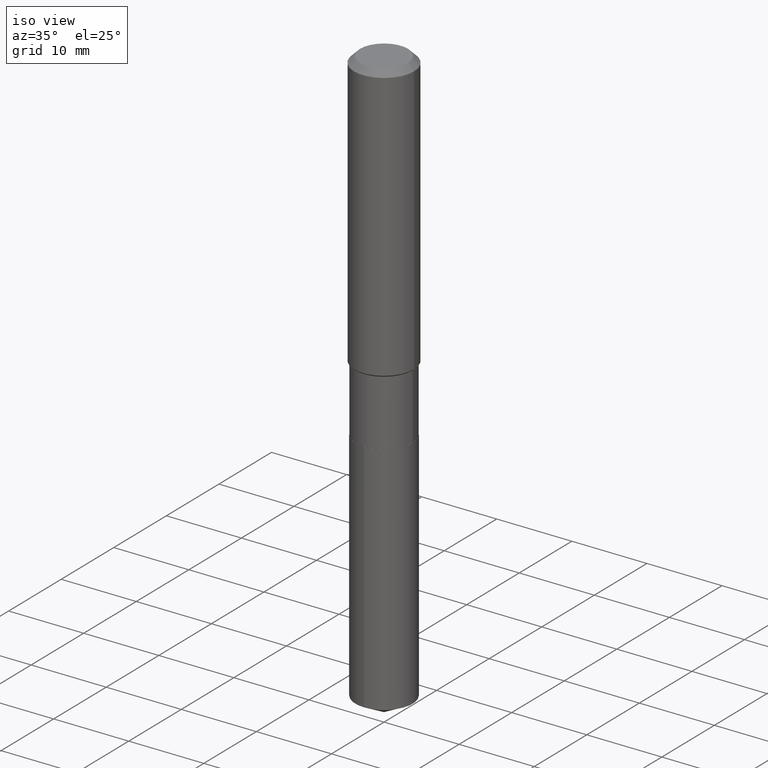
[diagram: clean part render]
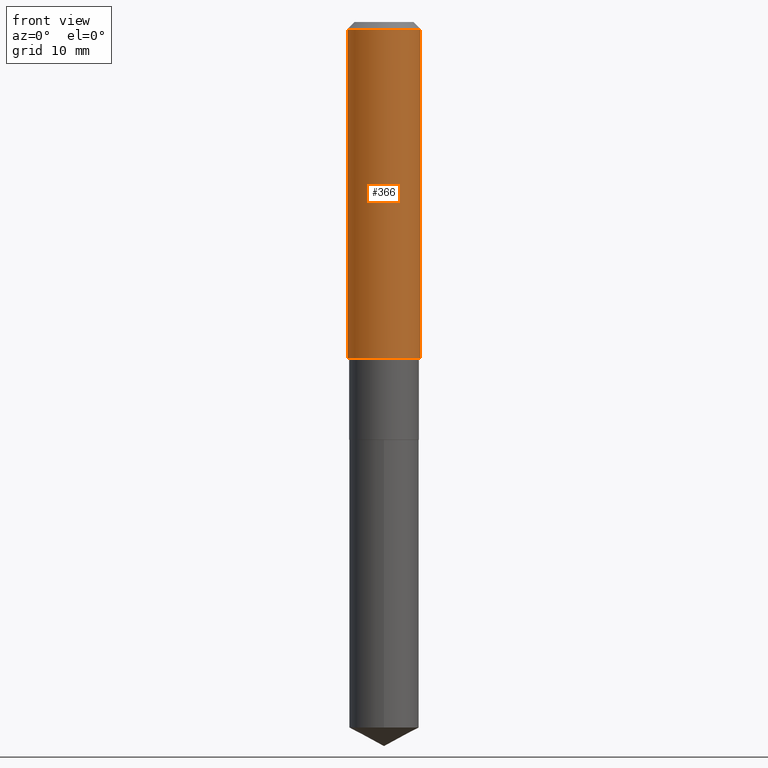
[diagram: tour spotlight — one face highlighted and labeled with its STEP entity id]
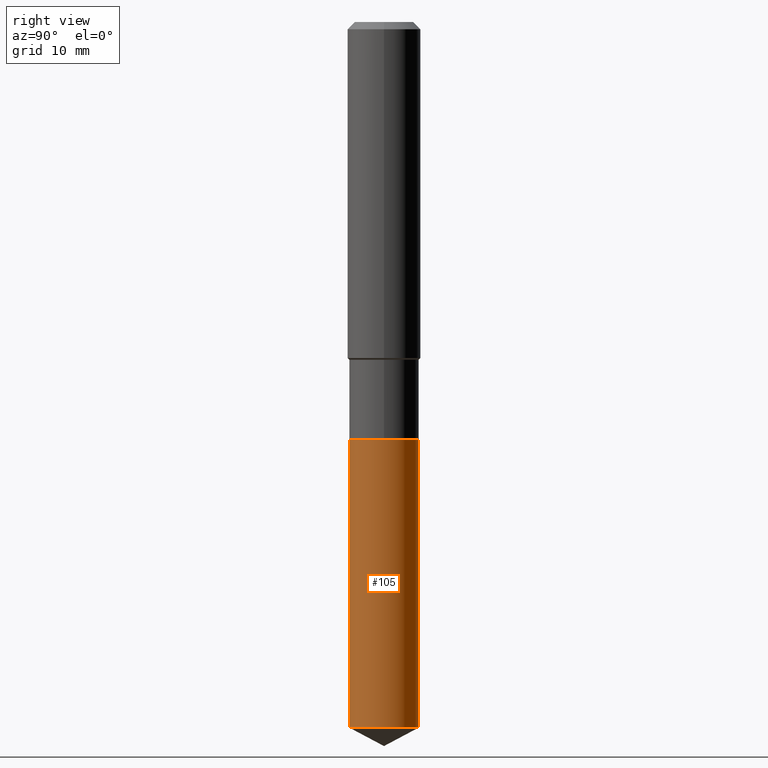
[diagram: tour spotlight — one face highlighted and labeled with its STEP entity id]
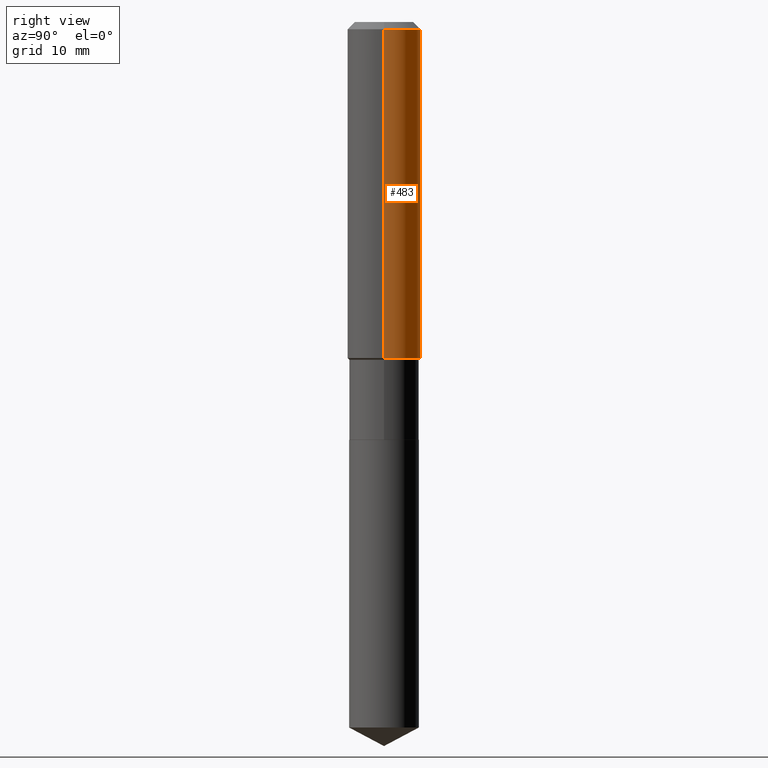
[diagram: tour spotlight — one face highlighted and labeled with its STEP entity id]
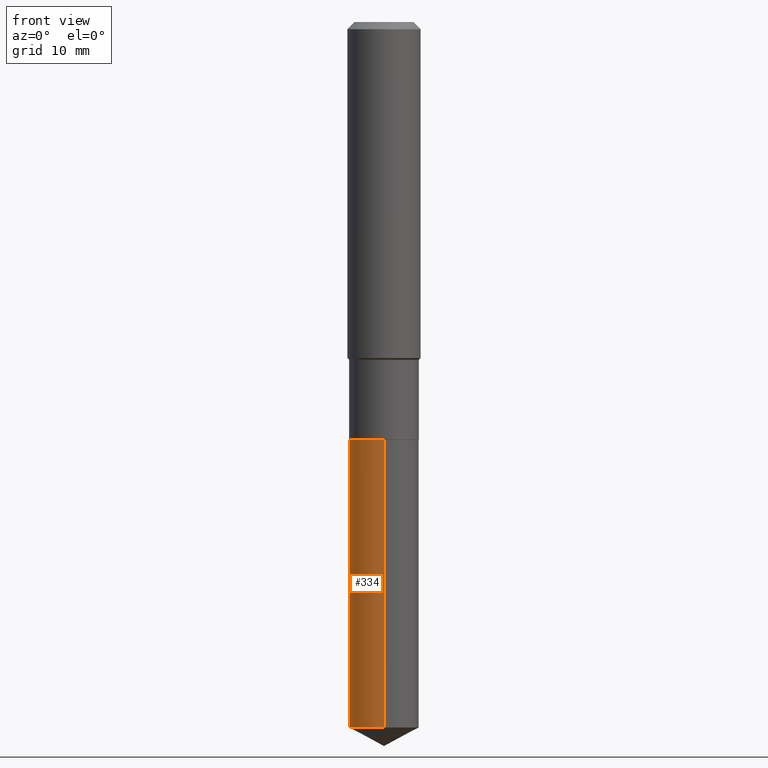
[diagram: tour spotlight — one face highlighted and labeled with its STEP entity id]
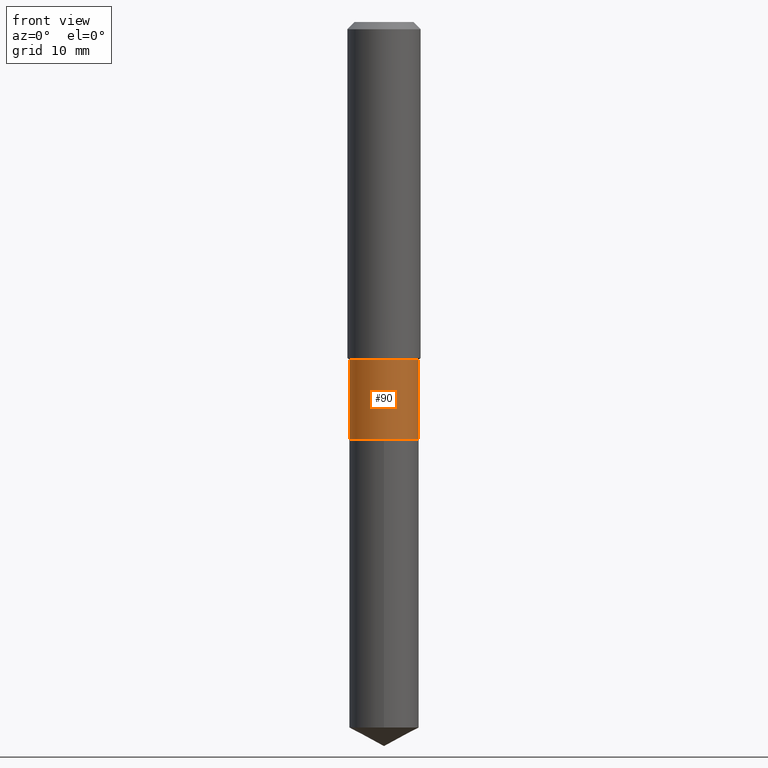
[diagram: tour spotlight — one face highlighted and labeled with its STEP entity id]
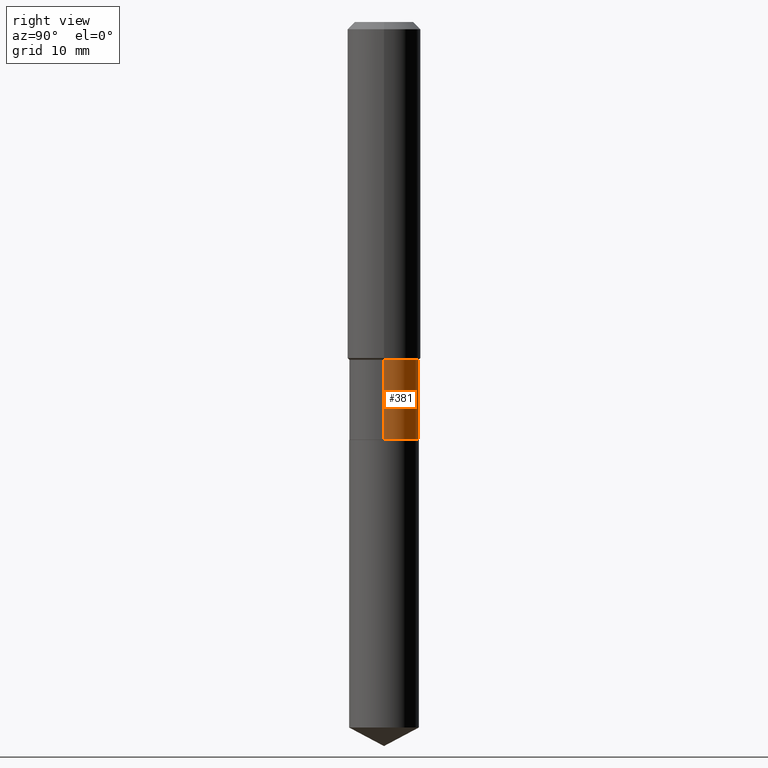
[diagram: tour spotlight — one face highlighted and labeled with its STEP entity id]
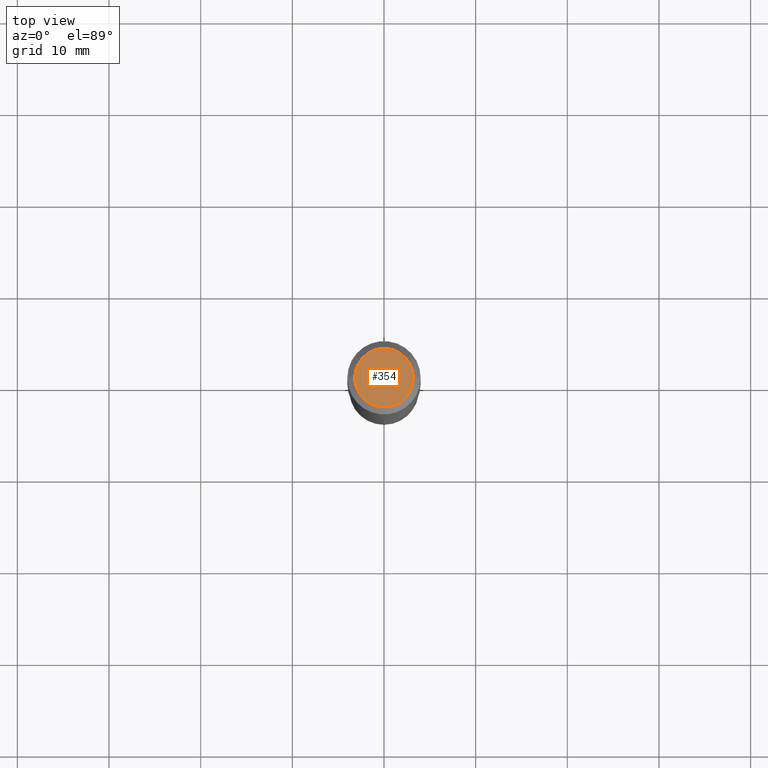
[diagram: tour spotlight — one face highlighted and labeled with its STEP entity id]
A machine part: a face-by-face anatomy tour. The part has 17 B-rep faces; the first image is the clean iso view, then the 7 largest visible faces are spotlighted one at a time (largest first), each with its STEP entity span.

Face 1 — front view, entity #366. In plain terms, the highlighted cylindrical surface (partial cylindrical patch) has radius 4.0005 mm, axis along (-0, 0, 1).
Definition (entity closure, byte-faithful):
#2 = FACE_OUTER_BOUND ( 'NONE', #450, .T. ) ;
#7 = CARTESIAN_POINT ( 'NONE',  ( 0.000000000000000000, 0.000000000000000000, 0.000000000000000000 ) ) ;
#12 = VECTOR ( 'NONE', #465, 39.37007874015748143 ) ;
#18 = DIRECTION ( 'NONE',  ( 1.000000000000000000, -6.982962677686265922E-15, 0.000000000000000000 ) ) ;
#35 = VERTEX_POINT ( 'NONE', #89 ) ;
#62 = LINE ( 'NONE', #133, #228 ) ;
#72 = ORIENTED_EDGE ( 'NONE', *, *, #343, .T. ) ;
#84 = EDGE_CURVE ( 'NONE', #404, #292, #62, .T. ) ;
#89 = CARTESIAN_POINT ( 'NONE',  ( -0.1575000000000000011, -1.455338956373834684E-15, -0.03150000000000019451 ) ) ;
#91 = AXIS2_PLACEMENT_3D ( 'NONE', #351, #153, #312 ) ;
#114 = CARTESIAN_POINT ( 'NONE',  ( 7.703226739483226971E-31, -1.099816621735597538E-16, -0.03150000000000019451 ) ) ;
#116 = DIRECTION ( 'NONE',  ( 1.000000000000000000, -6.982962677686267499E-15, 4.876176775795936353E-29 ) ) ;
#133 = CARTESIAN_POINT ( 'NONE',  ( 0.1575000000000000844, -1.099816621735587677E-15, 7.679978421878603638E-30 ) ) ;
#145 = DIRECTION ( 'NONE',  ( -2.445468806185136597E-29, 3.491481338843145583E-15, 1.000000000000000000 ) ) ;
#146 = ORIENTED_EDGE ( 'NONE', *, *, #84, .T. ) ;
#148 = CARTESIAN_POINT ( 'NONE',  ( 0.1575000000000001676, -6.138722489954014174E-15, -1.443199999999999816 ) ) ;
#153 = DIRECTION ( 'NONE',  ( -2.445468806185136597E-29, 3.491481338843145583E-15, 1.000000000000000000 ) ) ;
#154 = LINE ( 'NONE', #307, #12 ) ;
#173 = DIRECTION ( 'NONE',  ( -2.445468806185136877E-29, 3.491481338843145188E-15, 1.000000000000000000 ) ) ;
#176 = EDGE_CURVE ( 'NONE', #35, #292, #434, .T. ) ;
#228 = VECTOR ( 'NONE', #173, 39.37007874015748143 ) ;
#258 = AXIS2_PLACEMENT_3D ( 'NONE', #7, #145, #116 ) ;
#275 = CYLINDRICAL_SURFACE ( 'NONE', #258, 0.1575000000000000844 ) ;
#278 = DIRECTION ( 'NONE',  ( -2.445468806185136597E-29, 3.491481338843145583E-15, 1.000000000000000000 ) ) ;
#287 = CIRCLE ( 'NONE', #91, 0.1575000000000001676 ) ;
#292 = VERTEX_POINT ( 'NONE', #342 ) ;
#294 = EDGE_CURVE ( 'NONE', #314, #35, #154, .T. ) ;
#307 = CARTESIAN_POINT ( 'NONE',  ( -0.1575000000000000844, 1.119104808822158392E-15, -7.747322767151481189E-30 ) ) ;
#312 = DIRECTION ( 'NONE',  ( 1.000000000000000000, -6.982962677686267499E-15, 0.000000000000000000 ) ) ;
#314 = VERTEX_POINT ( 'NONE', #471 ) ;
#330 = AXIS2_PLACEMENT_3D ( 'NONE', #114, #278, #18 ) ;
#342 = CARTESIAN_POINT ( 'NONE',  ( 0.1575000000000000011, -1.209798283909146741E-15, -0.03150000000000019451 ) ) ;
#343 = EDGE_CURVE ( 'NONE', #314, #404, #287, .T. ) ;
#351 = CARTESIAN_POINT ( 'NONE',  ( 3.529300581086388319E-29, -5.038905868218426694E-15, -1.443199999999999816 ) ) ;
#366 = ADVANCED_FACE ( 'NONE', ( #2 ), #275, .T. ) ;
#392 = ORIENTED_EDGE ( 'NONE', *, *, #176, .F. ) ;
#404 = VERTEX_POINT ( 'NONE', #148 ) ;
#434 = CIRCLE ( 'NONE', #330, 0.1575000000000000011 ) ;
#450 = EDGE_LOOP ( 'NONE', ( #458, #72, #146, #392 ) ) ;
#458 = ORIENTED_EDGE ( 'NONE', *, *, #294, .F. ) ;
#465 = DIRECTION ( 'NONE',  ( -2.445468806185136877E-29, 3.491481338843145188E-15, 1.000000000000000000 ) ) ;
#471 = CARTESIAN_POINT ( 'NONE',  ( -0.1575000000000001676, -3.919801059396268302E-15, -1.443199999999999816 ) ) ;

Face 2 — right view, entity #105. In plain terms, the highlighted cylindrical surface (edge-blend (fillet) strip) has radius 3.7998 mm, axis along (-0, 0, 1).
Definition (entity closure, byte-faithful):
#3 = DIRECTION ( 'NONE',  ( -6.982962677686265922E-15, -1.000000000000000000, 3.652203200085913145E-15 ) ) ;
#4 = ORIENTED_EDGE ( 'NONE', *, *, #257, .T. ) ;
#9 = CARTESIAN_POINT ( 'NONE',  ( 1.062971932697184107E-15, 0.1495999999999894636, -3.030656269023443983 ) ) ;
#16 = LINE ( 'NONE', #47, #201 ) ;
#22 = CYLINDRICAL_SURFACE ( 'NONE', #143, 0.1496000000000000107 ) ;
#36 = VERTEX_POINT ( 'NONE', #9 ) ;
#42 = DIRECTION ( 'NONE',  ( -2.445563419251064334E-29, 3.491345847547695893E-15, 1.000000000000000000 ) ) ;
#47 = CARTESIAN_POINT ( 'NONE',  ( -1.044651216581821425E-15, -0.1496000000000062835, -1.795199999999999463 ) ) ;
#51 = CARTESIAN_POINT ( 'NONE',  ( 4.390105600863557446E-29, -6.267907299491214904E-15, -1.795200000000000129 ) ) ;
#58 = CARTESIAN_POINT ( 'NONE',  ( 7.411492258471693368E-29, -1.058131241417298379E-14, -3.030656269023443539 ) ) ;
#86 = DIRECTION ( 'NONE',  ( -6.982962677686265922E-15, -1.000000000000000000, 3.652203200085913145E-15 ) ) ;
#93 = AXIS2_PLACEMENT_3D ( 'NONE', #51, #340, #3 ) ;
#101 = VERTEX_POINT ( 'NONE', #358 ) ;
#105 = ADVANCED_FACE ( 'NONE', ( #166 ), #22, .T. ) ;
#109 = VECTOR ( 'NONE', #235, 39.37007874015748143 ) ;
#123 = VERTEX_POINT ( 'NONE', #317 ) ;
#143 = AXIS2_PLACEMENT_3D ( 'NONE', #324, #170, #435 ) ;
#166 = FACE_OUTER_BOUND ( 'NONE', #489, .T. ) ;
#170 = DIRECTION ( 'NONE',  ( -2.445563419251064334E-29, 3.491345847547695893E-15, 1.000000000000000000 ) ) ;
#175 = CIRCLE ( 'NONE', #93, 0.1496000000000000107 ) ;
#179 = CIRCLE ( 'NONE', #250, 0.1496000000000000107 ) ;
#192 = EDGE_CURVE ( 'NONE', #241, #123, #175, .T. ) ;
#194 = DIRECTION ( 'NONE',  ( -2.445563419251064334E-29, 3.491345847547695498E-15, 1.000000000000000000 ) ) ;
#201 = VECTOR ( 'NONE', #194, 39.37007874015748143 ) ;
#230 = LINE ( 'NONE', #395, #109 ) ;
#235 = DIRECTION ( 'NONE',  ( -2.445563419251064334E-29, 3.491345847547695498E-15, 1.000000000000000000 ) ) ;
#236 = ORIENTED_EDGE ( 'NONE', *, *, #289, .F. ) ;
#241 = VERTEX_POINT ( 'NONE', #424 ) ;
#250 = AXIS2_PLACEMENT_3D ( 'NONE', #58, #42, #86 ) ;
#252 = EDGE_CURVE ( 'NONE', #101, #36, #179, .T. ) ;
#257 = EDGE_CURVE ( 'NONE', #36, #123, #230, .T. ) ;
#268 = ORIENTED_EDGE ( 'NONE', *, *, #252, .T. ) ;
#289 = EDGE_CURVE ( 'NONE', #101, #241, #16, .T. ) ;
#317 = CARTESIAN_POINT ( 'NONE',  ( 1.062971932697184107E-15, 0.1495999999999937380, -1.795200000000000573 ) ) ;
#324 = CARTESIAN_POINT ( 'NONE',  ( 4.390105600863557446E-29, -6.267907299491214904E-15, -1.795200000000000129 ) ) ;
#340 = DIRECTION ( 'NONE',  ( -2.445563419251064334E-29, 3.491345847547695893E-15, 1.000000000000000000 ) ) ;
#358 = CARTESIAN_POINT ( 'NONE',  ( -1.044651216581791645E-15, -0.1496000000000106134, -3.030656269023443095 ) ) ;
#371 = ORIENTED_EDGE ( 'NONE', *, *, #192, .F. ) ;
#395 = CARTESIAN_POINT ( 'NONE',  ( 1.062971932697153736E-15, 0.1495999999999937380, -1.795200000000000573 ) ) ;
#424 = CARTESIAN_POINT ( 'NONE',  ( -1.044651216581821425E-15, -0.1496000000000062835, -1.795199999999999463 ) ) ;
#435 = DIRECTION ( 'NONE',  ( -6.982962677686265922E-15, -1.000000000000000000, 3.652203200085913145E-15 ) ) ;
#489 = EDGE_LOOP ( 'NONE', ( #268, #4, #371, #236 ) ) ;

Face 3 — right view, entity #483. In plain terms, the highlighted cylindrical surface (partial cylindrical patch) has radius 4.0005 mm, axis along (-0, 0, 1).
Definition (entity closure, byte-faithful):
#12 = VECTOR ( 'NONE', #465, 39.37007874015748143 ) ;
#35 = VERTEX_POINT ( 'NONE', #89 ) ;
#62 = LINE ( 'NONE', #133, #228 ) ;
#66 = CARTESIAN_POINT ( 'NONE',  ( 0.000000000000000000, 0.000000000000000000, 0.000000000000000000 ) ) ;
#69 = AXIS2_PLACEMENT_3D ( 'NONE', #433, #94, #245 ) ;
#71 = DIRECTION ( 'NONE',  ( -2.445468806185136597E-29, 3.491481338843145583E-15, 1.000000000000000000 ) ) ;
#84 = EDGE_CURVE ( 'NONE', #404, #292, #62, .T. ) ;
#89 = CARTESIAN_POINT ( 'NONE',  ( -0.1575000000000000011, -1.455338956373834684E-15, -0.03150000000000019451 ) ) ;
#94 = DIRECTION ( 'NONE',  ( -2.445468806185136597E-29, 3.491481338843145583E-15, 1.000000000000000000 ) ) ;
#118 = ORIENTED_EDGE ( 'NONE', *, *, #294, .T. ) ;
#133 = CARTESIAN_POINT ( 'NONE',  ( 0.1575000000000000844, -1.099816621735587677E-15, 7.679978421878603638E-30 ) ) ;
#139 = ORIENTED_EDGE ( 'NONE', *, *, #329, .F. ) ;
#140 = CYLINDRICAL_SURFACE ( 'NONE', #369, 0.1575000000000000844 ) ;
#148 = CARTESIAN_POINT ( 'NONE',  ( 0.1575000000000001676, -6.138722489954014174E-15, -1.443199999999999816 ) ) ;
#154 = LINE ( 'NONE', #307, #12 ) ;
#173 = DIRECTION ( 'NONE',  ( -2.445468806185136877E-29, 3.491481338843145188E-15, 1.000000000000000000 ) ) ;
#215 = DIRECTION ( 'NONE',  ( 1.000000000000000000, -6.982962677686267499E-15, 4.876176775795936353E-29 ) ) ;
#228 = VECTOR ( 'NONE', #173, 39.37007874015748143 ) ;
#245 = DIRECTION ( 'NONE',  ( 1.000000000000000000, -6.982962677686265922E-15, 0.000000000000000000 ) ) ;
#248 = EDGE_CURVE ( 'NONE', #404, #314, #400, .T. ) ;
#273 = ORIENTED_EDGE ( 'NONE', *, *, #84, .F. ) ;
#292 = VERTEX_POINT ( 'NONE', #342 ) ;
#294 = EDGE_CURVE ( 'NONE', #314, #35, #154, .T. ) ;
#307 = CARTESIAN_POINT ( 'NONE',  ( -0.1575000000000000844, 1.119104808822158392E-15, -7.747322767151481189E-30 ) ) ;
#313 = DIRECTION ( 'NONE',  ( 1.000000000000000000, -6.982962677686267499E-15, 0.000000000000000000 ) ) ;
#314 = VERTEX_POINT ( 'NONE', #471 ) ;
#319 = CARTESIAN_POINT ( 'NONE',  ( 3.529300581086388319E-29, -5.038905868218426694E-15, -1.443199999999999816 ) ) ;
#329 = EDGE_CURVE ( 'NONE', #292, #35, #331, .T. ) ;
#331 = CIRCLE ( 'NONE', #69, 0.1575000000000000011 ) ;
#342 = CARTESIAN_POINT ( 'NONE',  ( 0.1575000000000000011, -1.209798283909146741E-15, -0.03150000000000019451 ) ) ;
#369 = AXIS2_PLACEMENT_3D ( 'NONE', #66, #71, #215 ) ;
#377 = DIRECTION ( 'NONE',  ( -2.445468806185136597E-29, 3.491481338843145583E-15, 1.000000000000000000 ) ) ;
#379 = EDGE_LOOP ( 'NONE', ( #414, #118, #139, #273 ) ) ;
#400 = CIRCLE ( 'NONE', #405, 0.1575000000000001676 ) ;
#404 = VERTEX_POINT ( 'NONE', #148 ) ;
#405 = AXIS2_PLACEMENT_3D ( 'NONE', #319, #377, #313 ) ;
#410 = FACE_OUTER_BOUND ( 'NONE', #379, .T. ) ;
#414 = ORIENTED_EDGE ( 'NONE', *, *, #248, .T. ) ;
#433 = CARTESIAN_POINT ( 'NONE',  ( 7.703226739483226971E-31, -1.099816621735597538E-16, -0.03150000000000019451 ) ) ;
#465 = DIRECTION ( 'NONE',  ( -2.445468806185136877E-29, 3.491481338843145188E-15, 1.000000000000000000 ) ) ;
#471 = CARTESIAN_POINT ( 'NONE',  ( -0.1575000000000001676, -3.919801059396268302E-15, -1.443199999999999816 ) ) ;
#483 = ADVANCED_FACE ( 'NONE', ( #410 ), #140, .T. ) ;

Face 4 — front view, entity #334. In plain terms, the highlighted cylindrical surface (edge-blend (fillet) strip) has radius 3.7998 mm, axis along (-0, 0, 1).
Definition (entity closure, byte-faithful):
#9 = CARTESIAN_POINT ( 'NONE',  ( 1.062971932697184107E-15, 0.1495999999999894636, -3.030656269023443983 ) ) ;
#16 = LINE ( 'NONE', #47, #201 ) ;
#21 = CIRCLE ( 'NONE', #412, 0.1496000000000000107 ) ;
#26 = CARTESIAN_POINT ( 'NONE',  ( 4.390105600863557446E-29, -6.267907299491214904E-15, -1.795200000000000129 ) ) ;
#36 = VERTEX_POINT ( 'NONE', #9 ) ;
#47 = CARTESIAN_POINT ( 'NONE',  ( -1.044651216581821425E-15, -0.1496000000000062835, -1.795199999999999463 ) ) ;
#65 = DIRECTION ( 'NONE',  ( -6.982962677686265922E-15, -1.000000000000000000, 3.652203200085913145E-15 ) ) ;
#73 = EDGE_LOOP ( 'NONE', ( #216, #125, #87, #416 ) ) ;
#87 = ORIENTED_EDGE ( 'NONE', *, *, #289, .T. ) ;
#101 = VERTEX_POINT ( 'NONE', #358 ) ;
#109 = VECTOR ( 'NONE', #235, 39.37007874015748143 ) ;
#121 = AXIS2_PLACEMENT_3D ( 'NONE', #26, #398, #65 ) ;
#123 = VERTEX_POINT ( 'NONE', #317 ) ;
#125 = ORIENTED_EDGE ( 'NONE', *, *, #172, .T. ) ;
#132 = FACE_OUTER_BOUND ( 'NONE', #73, .T. ) ;
#149 = DIRECTION ( 'NONE',  ( -2.445563419251064334E-29, 3.491345847547695893E-15, 1.000000000000000000 ) ) ;
#150 = EDGE_CURVE ( 'NONE', #123, #241, #378, .T. ) ;
#172 = EDGE_CURVE ( 'NONE', #36, #101, #21, .T. ) ;
#194 = DIRECTION ( 'NONE',  ( -2.445563419251064334E-29, 3.491345847547695498E-15, 1.000000000000000000 ) ) ;
#201 = VECTOR ( 'NONE', #194, 39.37007874015748143 ) ;
#205 = DIRECTION ( 'NONE',  ( -6.982962677686265922E-15, -1.000000000000000000, 3.652203200085913145E-15 ) ) ;
#211 = DIRECTION ( 'NONE',  ( -6.982962677686265922E-15, -1.000000000000000000, 3.652203200085913145E-15 ) ) ;
#216 = ORIENTED_EDGE ( 'NONE', *, *, #257, .F. ) ;
#230 = LINE ( 'NONE', #395, #109 ) ;
#235 = DIRECTION ( 'NONE',  ( -2.445563419251064334E-29, 3.491345847547695498E-15, 1.000000000000000000 ) ) ;
#241 = VERTEX_POINT ( 'NONE', #424 ) ;
#249 = CARTESIAN_POINT ( 'NONE',  ( 4.390105600863557446E-29, -6.267907299491214904E-15, -1.795200000000000129 ) ) ;
#257 = EDGE_CURVE ( 'NONE', #36, #123, #230, .T. ) ;
#289 = EDGE_CURVE ( 'NONE', #101, #241, #16, .T. ) ;
#296 = AXIS2_PLACEMENT_3D ( 'NONE', #249, #436, #211 ) ;
#317 = CARTESIAN_POINT ( 'NONE',  ( 1.062971932697184107E-15, 0.1495999999999937380, -1.795200000000000573 ) ) ;
#334 = ADVANCED_FACE ( 'NONE', ( #132 ), #359, .T. ) ;
#358 = CARTESIAN_POINT ( 'NONE',  ( -1.044651216581791645E-15, -0.1496000000000106134, -3.030656269023443095 ) ) ;
#359 = CYLINDRICAL_SURFACE ( 'NONE', #121, 0.1496000000000000107 ) ;
#378 = CIRCLE ( 'NONE', #296, 0.1496000000000000107 ) ;
#395 = CARTESIAN_POINT ( 'NONE',  ( 1.062971932697153736E-15, 0.1495999999999937380, -1.795200000000000573 ) ) ;
#398 = DIRECTION ( 'NONE',  ( -2.445563419251064334E-29, 3.491345847547695893E-15, 1.000000000000000000 ) ) ;
#412 = AXIS2_PLACEMENT_3D ( 'NONE', #461, #149, #205 ) ;
#416 = ORIENTED_EDGE ( 'NONE', *, *, #150, .F. ) ;
#424 = CARTESIAN_POINT ( 'NONE',  ( -1.044651216581821425E-15, -0.1496000000000062835, -1.795199999999999463 ) ) ;
#436 = DIRECTION ( 'NONE',  ( -2.445563419251064334E-29, 3.491345847547695893E-15, 1.000000000000000000 ) ) ;
#461 = CARTESIAN_POINT ( 'NONE',  ( 7.411492258471693368E-29, -1.058131241417298379E-14, -3.030656269023443539 ) ) ;

Face 5 — front view, entity #90. In plain terms, the highlighted cylindrical surface (edge-blend (fillet) strip) has radius 3.7998 mm, axis along (-0, 0, 1).
Definition (entity closure, byte-faithful):
#11 = DIRECTION ( 'NONE',  ( -2.445468806185136597E-29, 3.491481338843145583E-15, 1.000000000000000000 ) ) ;
#25 = LINE ( 'NONE', #64, #308 ) ;
#60 = VERTEX_POINT ( 'NONE', #95 ) ;
#63 = DIRECTION ( 'NONE',  ( -2.445468806185136877E-29, 3.491481338843145188E-15, 1.000000000000000000 ) ) ;
#64 = CARTESIAN_POINT ( 'NONE',  ( -0.1495999999999999830, 1.062971932697109757E-15, -7.358726895021338760E-30 ) ) ;
#76 = CARTESIAN_POINT ( 'NONE',  ( 0.1496000000000000107, -7.310812775403659002E-15, -1.794700000000000184 ) ) ;
#82 = EDGE_LOOP ( 'NONE', ( #339, #181, #363, #383 ) ) ;
#90 = ADVANCED_FACE ( 'NONE', ( #357 ), #208, .T. ) ;
#92 = CARTESIAN_POINT ( 'NONE',  ( 3.548619784655251556E-29, -5.066488570795288817E-15, -1.451100000000000056 ) ) ;
#95 = CARTESIAN_POINT ( 'NONE',  ( -0.1495999999999999830, -4.603353132111431549E-15, -1.451100000000000056 ) ) ;
#102 = EDGE_CURVE ( 'NONE', #297, #60, #25, .T. ) ;
#103 = VECTOR ( 'NONE', #63, 39.37007874015748143 ) ;
#129 = DIRECTION ( 'NONE',  ( 1.000000000000000000, -6.982962677686266711E-15, 4.876176775795936353E-29 ) ) ;
#163 = EDGE_CURVE ( 'NONE', #279, #291, #247, .T. ) ;
#165 = CARTESIAN_POINT ( 'NONE',  ( 0.1495999999999999830, -6.111139787377153629E-15, -1.451100000000000056 ) ) ;
#180 = CIRCLE ( 'NONE', #441, 0.1495999999999999830 ) ;
#181 = ORIENTED_EDGE ( 'NONE', *, *, #444, .T. ) ;
#208 = CYLINDRICAL_SURFACE ( 'NONE', #474, 0.1495999999999999830 ) ;
#244 = DIRECTION ( 'NONE',  ( 1.000000000000000000, -6.982962677686262766E-15, 0.000000000000000000 ) ) ;
#247 = LINE ( 'NONE', #397, #103 ) ;
#270 = DIRECTION ( 'NONE',  ( 1.000000000000000000, -6.982962677686268288E-15, 0.000000000000000000 ) ) ;
#279 = VERTEX_POINT ( 'NONE', #76 ) ;
#283 = DIRECTION ( 'NONE',  ( -2.445468806185136597E-29, 3.491481338843145583E-15, 1.000000000000000000 ) ) ;
#291 = VERTEX_POINT ( 'NONE', #165 ) ;
#297 = VERTEX_POINT ( 'NONE', #390 ) ;
#308 = VECTOR ( 'NONE', #472, 39.37007874015748143 ) ;
#321 = CARTESIAN_POINT ( 'NONE',  ( 0.000000000000000000, 0.000000000000000000, 0.000000000000000000 ) ) ;
#326 = CIRCLE ( 'NONE', #481, 0.1496000000000000107 ) ;
#339 = ORIENTED_EDGE ( 'NONE', *, *, #102, .F. ) ;
#357 = FACE_OUTER_BOUND ( 'NONE', #82, .T. ) ;
#363 = ORIENTED_EDGE ( 'NONE', *, *, #163, .T. ) ;
#383 = ORIENTED_EDGE ( 'NONE', *, *, #457, .F. ) ;
#390 = CARTESIAN_POINT ( 'NONE',  ( -0.1496000000000000107, -4.603353132111431549E-15, -1.794700000000000184 ) ) ;
#397 = CARTESIAN_POINT ( 'NONE',  ( 0.1495999999999999830, -1.044651216581865404E-15, 7.294760456590720327E-30 ) ) ;
#432 = DIRECTION ( 'NONE',  ( -2.445468806185136597E-29, 3.491481338843145583E-15, 1.000000000000000000 ) ) ;
#441 = AXIS2_PLACEMENT_3D ( 'NONE', #92, #11, #244 ) ;
#444 = EDGE_CURVE ( 'NONE', #297, #279, #326, .T. ) ;
#457 = EDGE_CURVE ( 'NONE', #60, #291, #180, .T. ) ;
#464 = CARTESIAN_POINT ( 'NONE',  ( 4.388882866460465205E-29, -6.266161558821793401E-15, -1.794700000000000184 ) ) ;
#472 = DIRECTION ( 'NONE',  ( -2.445468806185136877E-29, 3.491481338843145188E-15, 1.000000000000000000 ) ) ;
#474 = AXIS2_PLACEMENT_3D ( 'NONE', #321, #283, #129 ) ;
#481 = AXIS2_PLACEMENT_3D ( 'NONE', #464, #432, #270 ) ;

Face 6 — right view, entity #381. In plain terms, the highlighted cylindrical surface (edge-blend (fillet) strip) has radius 3.7998 mm, axis along (-0, 0, 1).
Definition (entity closure, byte-faithful):
#5 = EDGE_CURVE ( 'NONE', #279, #297, #446, .T. ) ;
#19 = CARTESIAN_POINT ( 'NONE',  ( 3.548619784655251556E-29, -5.066488570795288817E-15, -1.451100000000000056 ) ) ;
#25 = LINE ( 'NONE', #64, #308 ) ;
#41 = CYLINDRICAL_SURFACE ( 'NONE', #59, 0.1495999999999999830 ) ;
#59 = AXIS2_PLACEMENT_3D ( 'NONE', #185, #225, #280 ) ;
#60 = VERTEX_POINT ( 'NONE', #95 ) ;
#63 = DIRECTION ( 'NONE',  ( -2.445468806185136877E-29, 3.491481338843145188E-15, 1.000000000000000000 ) ) ;
#64 = CARTESIAN_POINT ( 'NONE',  ( -0.1495999999999999830, 1.062971932697109757E-15, -7.358726895021338760E-30 ) ) ;
#76 = CARTESIAN_POINT ( 'NONE',  ( 0.1496000000000000107, -7.310812775403659002E-15, -1.794700000000000184 ) ) ;
#95 = CARTESIAN_POINT ( 'NONE',  ( -0.1495999999999999830, -4.603353132111431549E-15, -1.451100000000000056 ) ) ;
#102 = EDGE_CURVE ( 'NONE', #297, #60, #25, .T. ) ;
#103 = VECTOR ( 'NONE', #63, 39.37007874015748143 ) ;
#127 = EDGE_CURVE ( 'NONE', #291, #60, #254, .T. ) ;
#163 = EDGE_CURVE ( 'NONE', #279, #291, #247, .T. ) ;
#165 = CARTESIAN_POINT ( 'NONE',  ( 0.1495999999999999830, -6.111139787377153629E-15, -1.451100000000000056 ) ) ;
#168 = DIRECTION ( 'NONE',  ( 1.000000000000000000, -6.982962677686262766E-15, 0.000000000000000000 ) ) ;
#185 = CARTESIAN_POINT ( 'NONE',  ( 0.000000000000000000, 0.000000000000000000, 0.000000000000000000 ) ) ;
#199 = CARTESIAN_POINT ( 'NONE',  ( 4.388882866460465205E-29, -6.266161558821793401E-15, -1.794700000000000184 ) ) ;
#210 = AXIS2_PLACEMENT_3D ( 'NONE', #199, #462, #349 ) ;
#225 = DIRECTION ( 'NONE',  ( -2.445468806185136597E-29, 3.491481338843145583E-15, 1.000000000000000000 ) ) ;
#232 = ORIENTED_EDGE ( 'NONE', *, *, #102, .T. ) ;
#247 = LINE ( 'NONE', #397, #103 ) ;
#254 = CIRCLE ( 'NONE', #337, 0.1495999999999999830 ) ;
#264 = ORIENTED_EDGE ( 'NONE', *, *, #163, .F. ) ;
#279 = VERTEX_POINT ( 'NONE', #76 ) ;
#280 = DIRECTION ( 'NONE',  ( 1.000000000000000000, -6.982962677686266711E-15, 4.876176775795936353E-29 ) ) ;
#291 = VERTEX_POINT ( 'NONE', #165 ) ;
#297 = VERTEX_POINT ( 'NONE', #390 ) ;
#308 = VECTOR ( 'NONE', #472, 39.37007874015748143 ) ;
#309 = EDGE_LOOP ( 'NONE', ( #374, #232, #333, #264 ) ) ;
#322 = DIRECTION ( 'NONE',  ( -2.445468806185136597E-29, 3.491481338843145583E-15, 1.000000000000000000 ) ) ;
#333 = ORIENTED_EDGE ( 'NONE', *, *, #127, .F. ) ;
#337 = AXIS2_PLACEMENT_3D ( 'NONE', #19, #322, #168 ) ;
#349 = DIRECTION ( 'NONE',  ( 1.000000000000000000, -6.982962677686268288E-15, 0.000000000000000000 ) ) ;
#374 = ORIENTED_EDGE ( 'NONE', *, *, #5, .T. ) ;
#381 = ADVANCED_FACE ( 'NONE', ( #427 ), #41, .T. ) ;
#390 = CARTESIAN_POINT ( 'NONE',  ( -0.1496000000000000107, -4.603353132111431549E-15, -1.794700000000000184 ) ) ;
#397 = CARTESIAN_POINT ( 'NONE',  ( 0.1495999999999999830, -1.044651216581865404E-15, 7.294760456590720327E-30 ) ) ;
#427 = FACE_OUTER_BOUND ( 'NONE', #309, .T. ) ;
#446 = CIRCLE ( 'NONE', #210, 0.1496000000000000107 ) ;
#462 = DIRECTION ( 'NONE',  ( -2.445468806185136597E-29, 3.491481338843145583E-15, 1.000000000000000000 ) ) ;
#472 = DIRECTION ( 'NONE',  ( -2.445468806185136877E-29, 3.491481338843145188E-15, 1.000000000000000000 ) ) ;

Face 7 — top view, entity #354. In plain terms, the highlighted planar face has unit normal (0, -0, -1).
Definition (entity closure, byte-faithful):
#126 = FACE_OUTER_BOUND ( 'NONE', #328, .T. ) ;
#141 = ORIENTED_EDGE ( 'NONE', *, *, #327, .T. ) ;
#171 = DIRECTION ( 'NONE',  ( -2.445468806185136597E-29, 3.491481338843145583E-15, 1.000000000000000000 ) ) ;
#183 = VERTEX_POINT ( 'NONE', #190 ) ;
#190 = CARTESIAN_POINT ( 'NONE',  ( 0.1260000000000000009, -1.027466422270894443E-15, 3.860086710919128072E-18 ) ) ;
#202 = AXIS2_PLACEMENT_3D ( 'NONE', #266, #418, #389 ) ;
#203 = CARTESIAN_POINT ( 'NONE',  ( -9.439721640706201686E-47, 1.347742071746726764E-32, 3.860086710912459732E-18 ) ) ;
#219 = ORIENTED_EDGE ( 'NONE', *, *, #338, .T. ) ;
#238 = PLANE ( 'NONE',  #202 ) ;
#239 = DIRECTION ( 'NONE',  ( -2.445468806185136597E-29, 3.491481338843145583E-15, 1.000000000000000000 ) ) ;
#266 = CARTESIAN_POINT ( 'NONE',  ( -4.719860820353100843E-47, 6.738710358733633822E-33, 1.930043355456229866E-18 ) ) ;
#281 = DIRECTION ( 'NONE',  ( 1.000000000000000000, -6.982962677686265922E-15, 4.876281427513067258E-29 ) ) ;
#295 = CIRCLE ( 'NONE', #393, 0.1260000000000000009 ) ;
#301 = CARTESIAN_POINT ( 'NONE',  ( -0.1260000000000000009, 9.348441284752484904E-16, 3.860086710906114178E-18 ) ) ;
#327 = EDGE_CURVE ( 'NONE', #447, #183, #480, .T. ) ;
#328 = EDGE_LOOP ( 'NONE', ( #141, #219 ) ) ;
#338 = EDGE_CURVE ( 'NONE', #183, #447, #295, .T. ) ;
#354 = ADVANCED_FACE ( 'NONE', ( #126 ), #238, .F. ) ;
#389 = DIRECTION ( 'NONE',  ( -1.000000000000000000, 6.982962677686265922E-15, -4.876176775795935793E-29 ) ) ;
#393 = AXIS2_PLACEMENT_3D ( 'NONE', #443, #171, #394 ) ;
#394 = DIRECTION ( 'NONE',  ( 1.000000000000000000, -6.982962677686265922E-15, 4.876281427513067258E-29 ) ) ;
#418 = DIRECTION ( 'NONE',  ( 2.438088387897960049E-29, -3.491481338843145188E-15, -1.000000000000000000 ) ) ;
#443 = CARTESIAN_POINT ( 'NONE',  ( -9.439721640706201686E-47, 1.347742071746726764E-32, 3.860086710912459732E-18 ) ) ;
#447 = VERTEX_POINT ( 'NONE', #301 ) ;
#451 = AXIS2_PLACEMENT_3D ( 'NONE', #203, #239, #281 ) ;
#480 = CIRCLE ( 'NONE', #451, 0.1260000000000000009 ) ;